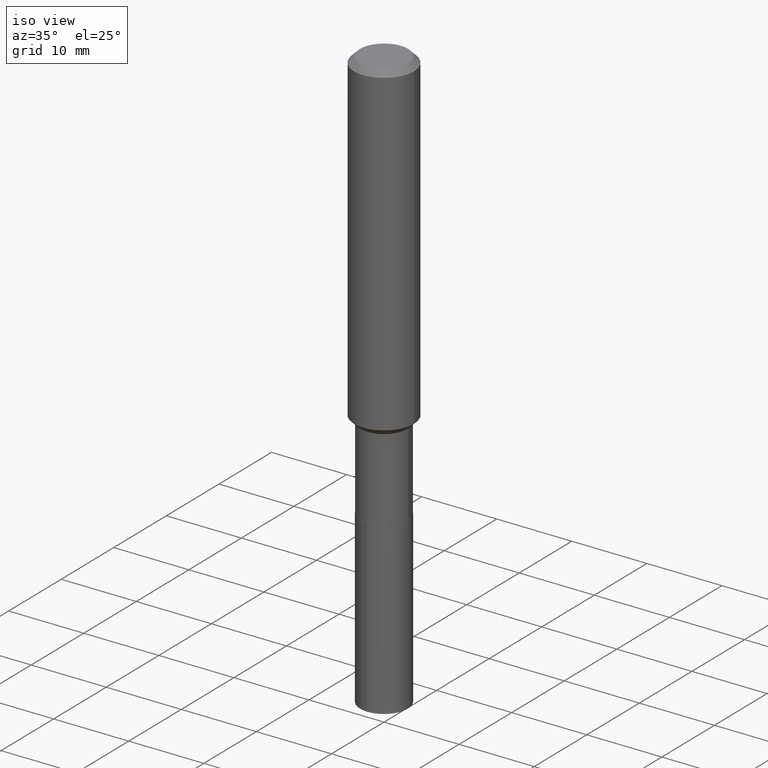
[diagram: clean part render]
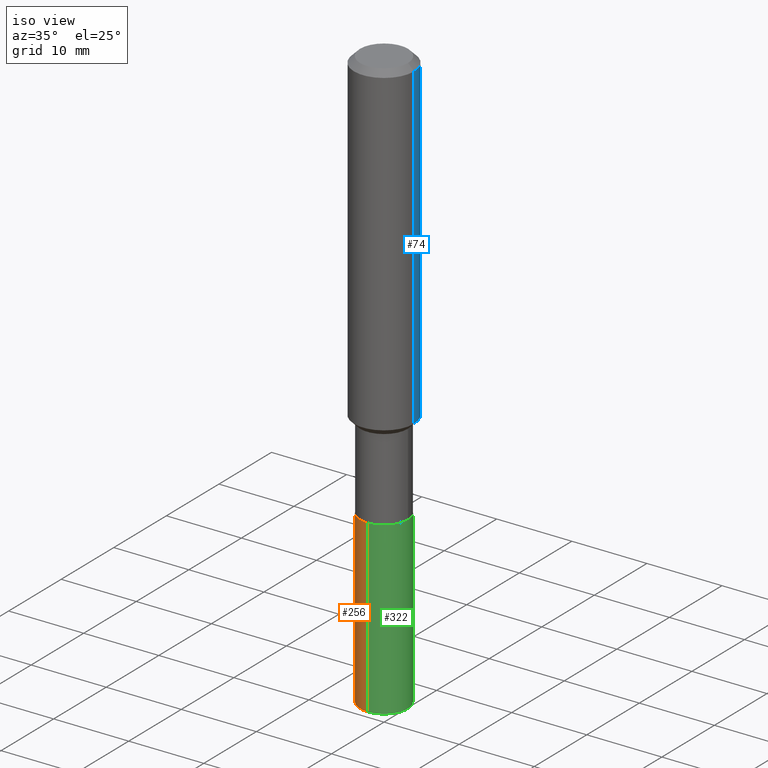
[diagram: same view with three faces highlighted in distinct colors, each labeled with its STEP entity id]
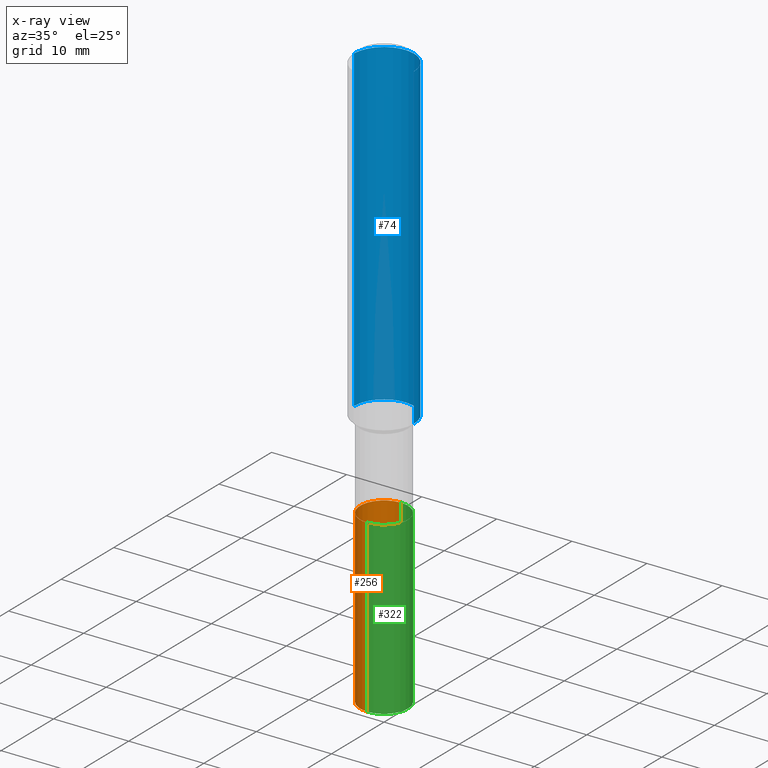
[diagram: x-ray of the same camera — body ghosted, the three highlighted faces saturated]
A machine part, iso view with three faces highlighted in distinct colors.
The next image is the same camera in x-ray (body ghosted, the three faces saturated) — at least one of them is partly hidden behind the body in this view.
Their STEP definitions:

[orange] entity #256 — the highlighted cylindrical surface (edge-blend (fillet) strip) has radius 3.175 mm, axis along (-0, 0, 1).
#2 = DIRECTION ( 'NONE',  ( -6.982962677686265922E-15, -1.000000000000000000, 4.370956789862821150E-15 ) ) ;
#40 = CARTESIAN_POINT ( 'NONE',  ( 5.295173606032675561E-29, -7.560104542997063911E-15, -2.165299999999999780 ) ) ;
#46 = CARTESIAN_POINT ( 'NONE',  ( -8.728703347107302879E-16, -0.1250000000000075495, -2.165299999999999336 ) ) ;
#51 = CARTESIAN_POINT ( 'NONE',  ( 8.881784197001780860E-16, 0.1249999999999924366, -2.165300000000000669 ) ) ;
#52 = VERTEX_POINT ( 'NONE', #169 ) ;
#69 = ORIENTED_EDGE ( 'NONE', *, *, #473, .F. ) ;
#82 = ORIENTED_EDGE ( 'NONE', *, *, #484, .F. ) ;
#86 = CYLINDRICAL_SURFACE ( 'NONE', #182, 0.1250000000000000000 ) ;
#102 = ORIENTED_EDGE ( 'NONE', *, *, #441, .T. ) ;
#110 = VERTEX_POINT ( 'NONE', #380 ) ;
#128 = CARTESIAN_POINT ( 'NONE',  ( -8.728703347107081012E-16, -0.1250000000000106581, -3.060961190548132205 ) ) ;
#129 = DIRECTION ( 'NONE',  ( -6.982962677686265922E-15, -1.000000000000000000, 4.370956789862821150E-15 ) ) ;
#163 = LINE ( 'NONE', #46, #330 ) ;
#165 = DIRECTION ( 'NONE',  ( -2.445165186319441374E-29, 3.491916139771791272E-15, 1.000000000000000000 ) ) ;
#169 = CARTESIAN_POINT ( 'NONE',  ( 8.881784197001997797E-16, 0.1249999999999892863, -3.060961190548133093 ) ) ;
#170 = DIRECTION ( 'NONE',  ( -2.445165186319441374E-29, 3.491916139771791272E-15, 1.000000000000000000 ) ) ;
#171 = FACE_OUTER_BOUND ( 'NONE', #210, .T. ) ;
#182 = AXIS2_PLACEMENT_3D ( 'NONE', #40, #466, #129 ) ;
#195 = VECTOR ( 'NONE', #165, 39.37007874015748143 ) ;
#210 = EDGE_LOOP ( 'NONE', ( #69, #450, #102, #82 ) ) ;
#256 = ADVANCED_FACE ( 'NONE', ( #171 ), #86, .T. ) ;
#258 = CARTESIAN_POINT ( 'NONE',  ( -8.728703347107302879E-16, -0.1250000000000075495, -2.165299999999999336 ) ) ;
#264 = LINE ( 'NONE', #51, #195 ) ;
#265 = CIRCLE ( 'NONE', #422, 0.1250000000000000000 ) ;
#270 = CARTESIAN_POINT ( 'NONE',  ( 5.295173606032675561E-29, -7.560104542997063911E-15, -2.165299999999999780 ) ) ;
#280 = VERTEX_POINT ( 'NONE', #128 ) ;
#330 = VECTOR ( 'NONE', #170, 39.37007874015748143 ) ;
#347 = CARTESIAN_POINT ( 'NONE',  ( 7.485213167898394894E-29, -1.068767831003930387E-14, -3.060961190548132649 ) ) ;
#354 = DIRECTION ( 'NONE',  ( -2.445165186319441374E-29, 3.491916139771790878E-15, 1.000000000000000000 ) ) ;
#377 = CIRCLE ( 'NONE', #455, 0.1250000000000000000 ) ;
#380 = CARTESIAN_POINT ( 'NONE',  ( 8.881784197001999769E-16, 0.1249999999999924366, -2.165300000000000669 ) ) ;
#396 = VERTEX_POINT ( 'NONE', #258 ) ;
#421 = EDGE_CURVE ( 'NONE', #52, #280, #265, .T. ) ;
#422 = AXIS2_PLACEMENT_3D ( 'NONE', #347, #354, #2 ) ;
#424 = DIRECTION ( 'NONE',  ( -6.982962677686265922E-15, -1.000000000000000000, 4.370956789862821150E-15 ) ) ;
#441 = EDGE_CURVE ( 'NONE', #280, #396, #163, .T. ) ;
#450 = ORIENTED_EDGE ( 'NONE', *, *, #421, .T. ) ;
#455 = AXIS2_PLACEMENT_3D ( 'NONE', #270, #467, #424 ) ;
#466 = DIRECTION ( 'NONE',  ( -2.445165186319441374E-29, 3.491916139771790878E-15, 1.000000000000000000 ) ) ;
#467 = DIRECTION ( 'NONE',  ( -2.445165186319441374E-29, 3.491916139771790878E-15, 1.000000000000000000 ) ) ;
#473 = EDGE_CURVE ( 'NONE', #52, #110, #264, .T. ) ;
#484 = EDGE_CURVE ( 'NONE', #110, #396, #377, .T. ) ;

[blue] entity #74 — the highlighted cylindrical surface (partial cylindrical patch) has radius 4.0005 mm, axis along (-0, 0, 1).
#17 = CARTESIAN_POINT ( 'NONE',  ( 7.703226739483226095E-31, -1.099816621735597415E-16, -0.03150000000000018757 ) ) ;
#20 = EDGE_LOOP ( 'NONE', ( #54, #417, #181, #38 ) ) ;
#33 = EDGE_CURVE ( 'NONE', #245, #253, #226, .T. ) ;
#38 = ORIENTED_EDGE ( 'NONE', *, *, #351, .F. ) ;
#42 = CARTESIAN_POINT ( 'NONE',  ( 0.1575000000000000011, -1.209798283909146741E-15, -0.03150000000000018757 ) ) ;
#50 = CIRCLE ( 'NONE', #481, 0.1575000000000000011 ) ;
#54 = ORIENTED_EDGE ( 'NONE', *, *, #33, .T. ) ;
#72 = DIRECTION ( 'NONE',  ( -2.445468806185136877E-29, 3.491481338843145188E-15, 1.000000000000000000 ) ) ;
#74 = ADVANCED_FACE ( 'NONE', ( #237 ), #172, .T. ) ;
#81 = DIRECTION ( 'NONE',  ( -2.445468806185136597E-29, 3.491481338843145583E-15, 1.000000000000000000 ) ) ;
#95 = CARTESIAN_POINT ( 'NONE',  ( 0.1575000000000001954, -7.040921267911083506E-15, -1.701600000000000001 ) ) ;
#135 = VECTOR ( 'NONE', #203, 39.37007874015748143 ) ;
#139 = DIRECTION ( 'NONE',  ( -2.445468806185136597E-29, 3.491481338843145583E-15, 1.000000000000000000 ) ) ;
#151 = AXIS2_PLACEMENT_3D ( 'NONE', #198, #427, #461 ) ;
#164 = EDGE_CURVE ( 'NONE', #317, #323, #50, .T. ) ;
#172 = CYLINDRICAL_SURFACE ( 'NONE', #275, 0.1575000000000000844 ) ;
#176 = VECTOR ( 'NONE', #72, 39.37007874015748143 ) ;
#181 = ORIENTED_EDGE ( 'NONE', *, *, #164, .F. ) ;
#198 = CARTESIAN_POINT ( 'NONE',  ( 4.161209720604628507E-29, -5.941104646175496815E-15, -1.701600000000000001 ) ) ;
#202 = DIRECTION ( 'NONE',  ( 1.000000000000000000, -6.982962677686267499E-15, 4.876176775795936353E-29 ) ) ;
#203 = DIRECTION ( 'NONE',  ( -2.445468806185136877E-29, 3.491481338843145188E-15, 1.000000000000000000 ) ) ;
#226 = CIRCLE ( 'NONE', #151, 0.1575000000000001954 ) ;
#228 = LINE ( 'NONE', #432, #135 ) ;
#233 = CARTESIAN_POINT ( 'NONE',  ( 0.000000000000000000, 0.000000000000000000, 0.000000000000000000 ) ) ;
#237 = FACE_OUTER_BOUND ( 'NONE', #20, .T. ) ;
#245 = VERTEX_POINT ( 'NONE', #95 ) ;
#250 = CARTESIAN_POINT ( 'NONE',  ( 0.1575000000000000844, -1.099816621735587677E-15, 7.679978421878603638E-30 ) ) ;
#253 = VERTEX_POINT ( 'NONE', #425 ) ;
#269 = EDGE_CURVE ( 'NONE', #253, #323, #228, .T. ) ;
#275 = AXIS2_PLACEMENT_3D ( 'NONE', #233, #81, #202 ) ;
#291 = CARTESIAN_POINT ( 'NONE',  ( -0.1575000000000000011, -1.906438345352368955E-15, -0.03150000000000018757 ) ) ;
#317 = VERTEX_POINT ( 'NONE', #42 ) ;
#323 = VERTEX_POINT ( 'NONE', #291 ) ;
#351 = EDGE_CURVE ( 'NONE', #245, #317, #453, .T. ) ;
#417 = ORIENTED_EDGE ( 'NONE', *, *, #269, .T. ) ;
#425 = CARTESIAN_POINT ( 'NONE',  ( -0.1575000000000001954, -4.821999837353336845E-15, -1.701600000000000001 ) ) ;
#427 = DIRECTION ( 'NONE',  ( -2.445468806185136597E-29, 3.491481338843145583E-15, 1.000000000000000000 ) ) ;
#432 = CARTESIAN_POINT ( 'NONE',  ( -0.1575000000000000844, 1.119104808822158392E-15, -7.747322767151481189E-30 ) ) ;
#434 = DIRECTION ( 'NONE',  ( 1.000000000000000000, -6.982962677686265922E-15, 0.000000000000000000 ) ) ;
#453 = LINE ( 'NONE', #250, #176 ) ;
#461 = DIRECTION ( 'NONE',  ( 1.000000000000000000, -6.982962677686265922E-15, 0.000000000000000000 ) ) ;
#481 = AXIS2_PLACEMENT_3D ( 'NONE', #17, #139, #434 ) ;

[green] entity #322 — the highlighted cylindrical surface (edge-blend (fillet) strip) has radius 3.175 mm, axis along (-0, 0, 1).
#36 = CARTESIAN_POINT ( 'NONE',  ( 5.295173606032675561E-29, -7.560104542997063911E-15, -2.165299999999999780 ) ) ;
#37 = AXIS2_PLACEMENT_3D ( 'NONE', #36, #252, #155 ) ;
#46 = CARTESIAN_POINT ( 'NONE',  ( -8.728703347107302879E-16, -0.1250000000000075495, -2.165299999999999336 ) ) ;
#51 = CARTESIAN_POINT ( 'NONE',  ( 8.881784197001780860E-16, 0.1249999999999924366, -2.165300000000000669 ) ) ;
#52 = VERTEX_POINT ( 'NONE', #169 ) ;
#53 = DIRECTION ( 'NONE',  ( -2.445165186319441374E-29, 3.491916139771790878E-15, 1.000000000000000000 ) ) ;
#63 = ORIENTED_EDGE ( 'NONE', *, *, #473, .T. ) ;
#77 = ORIENTED_EDGE ( 'NONE', *, *, #441, .F. ) ;
#89 = CIRCLE ( 'NONE', #219, 0.1250000000000000000 ) ;
#110 = VERTEX_POINT ( 'NONE', #380 ) ;
#128 = CARTESIAN_POINT ( 'NONE',  ( -8.728703347107081012E-16, -0.1250000000000106581, -3.060961190548132205 ) ) ;
#133 = CARTESIAN_POINT ( 'NONE',  ( 5.295173606032675561E-29, -7.560104542997063911E-15, -2.165299999999999780 ) ) ;
#138 = ORIENTED_EDGE ( 'NONE', *, *, #166, .T. ) ;
#143 = ORIENTED_EDGE ( 'NONE', *, *, #294, .F. ) ;
#155 = DIRECTION ( 'NONE',  ( -6.982962677686265922E-15, -1.000000000000000000, 4.370956789862821150E-15 ) ) ;
#159 = AXIS2_PLACEMENT_3D ( 'NONE', #133, #53, #355 ) ;
#163 = LINE ( 'NONE', #46, #330 ) ;
#165 = DIRECTION ( 'NONE',  ( -2.445165186319441374E-29, 3.491916139771791272E-15, 1.000000000000000000 ) ) ;
#166 = EDGE_CURVE ( 'NONE', #280, #52, #89, .T. ) ;
#169 = CARTESIAN_POINT ( 'NONE',  ( 8.881784197001997797E-16, 0.1249999999999892863, -3.060961190548133093 ) ) ;
#170 = DIRECTION ( 'NONE',  ( -2.445165186319441374E-29, 3.491916139771791272E-15, 1.000000000000000000 ) ) ;
#191 = EDGE_LOOP ( 'NONE', ( #138, #63, #143, #77 ) ) ;
#195 = VECTOR ( 'NONE', #165, 39.37007874015748143 ) ;
#219 = AXIS2_PLACEMENT_3D ( 'NONE', #338, #443, #488 ) ;
#235 = CIRCLE ( 'NONE', #159, 0.1250000000000000000 ) ;
#252 = DIRECTION ( 'NONE',  ( -2.445165186319441374E-29, 3.491916139771790878E-15, 1.000000000000000000 ) ) ;
#258 = CARTESIAN_POINT ( 'NONE',  ( -8.728703347107302879E-16, -0.1250000000000075495, -2.165299999999999336 ) ) ;
#264 = LINE ( 'NONE', #51, #195 ) ;
#280 = VERTEX_POINT ( 'NONE', #128 ) ;
#294 = EDGE_CURVE ( 'NONE', #396, #110, #235, .T. ) ;
#322 = ADVANCED_FACE ( 'NONE', ( #479 ), #327, .T. ) ;
#327 = CYLINDRICAL_SURFACE ( 'NONE', #37, 0.1250000000000000000 ) ;
#330 = VECTOR ( 'NONE', #170, 39.37007874015748143 ) ;
#338 = CARTESIAN_POINT ( 'NONE',  ( 7.485213167898394894E-29, -1.068767831003930387E-14, -3.060961190548132649 ) ) ;
#355 = DIRECTION ( 'NONE',  ( -6.982962677686265922E-15, -1.000000000000000000, 4.370956789862821150E-15 ) ) ;
#380 = CARTESIAN_POINT ( 'NONE',  ( 8.881784197001999769E-16, 0.1249999999999924366, -2.165300000000000669 ) ) ;
#396 = VERTEX_POINT ( 'NONE', #258 ) ;
#441 = EDGE_CURVE ( 'NONE', #280, #396, #163, .T. ) ;
#443 = DIRECTION ( 'NONE',  ( -2.445165186319441374E-29, 3.491916139771790878E-15, 1.000000000000000000 ) ) ;
#473 = EDGE_CURVE ( 'NONE', #52, #110, #264, .T. ) ;
#479 = FACE_OUTER_BOUND ( 'NONE', #191, .T. ) ;
#488 = DIRECTION ( 'NONE',  ( -6.982962677686265922E-15, -1.000000000000000000, 4.370956789862821150E-15 ) ) ;